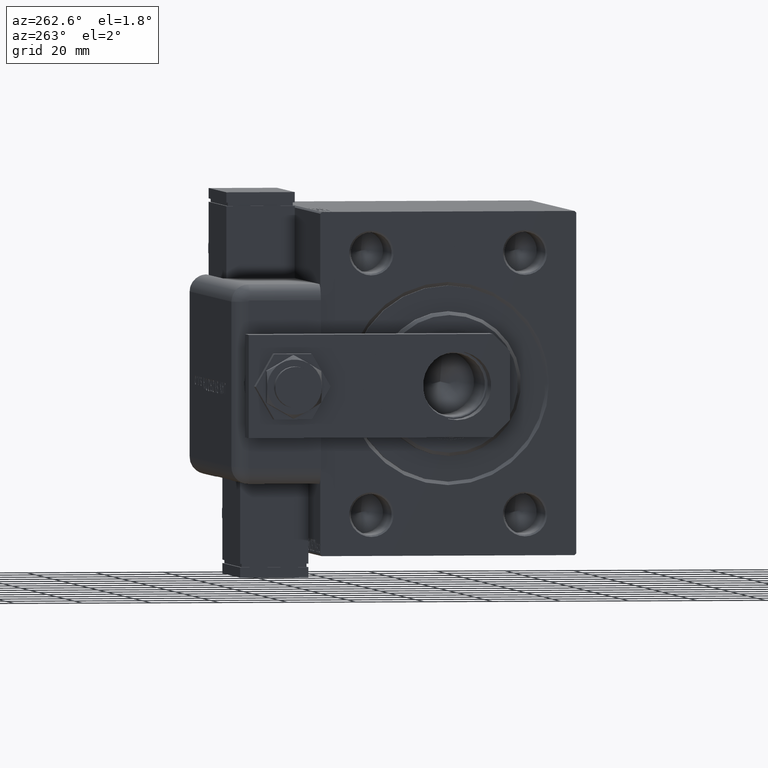
[diagram: clean part render]
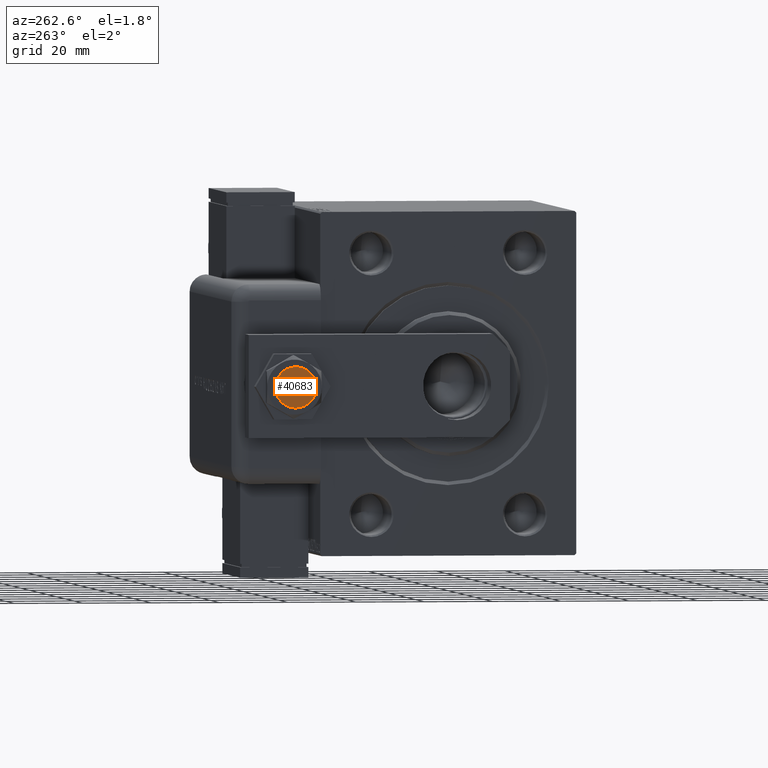
[diagram: same view with one face highlighted and labeled with its STEP entity id]
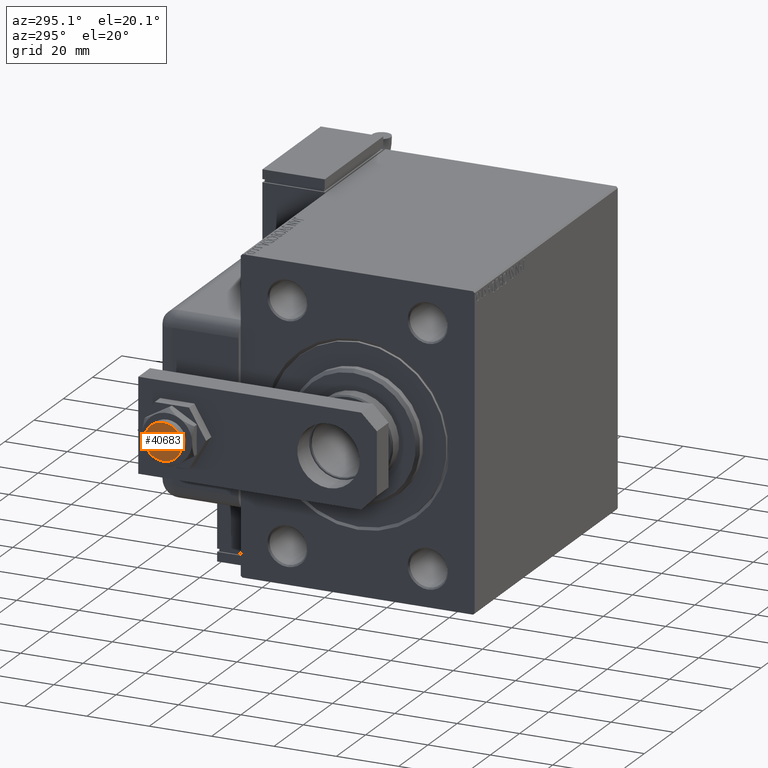
[diagram: same view with one face highlighted and labeled with its STEP entity id]
A machine part, auxiliary view. The second image highlights one B-rep face of the part: STEP entity #40683.
A second angle (auxiliary view) of the same face is appended — the face is thin or edge-on in the first view.
In plain terms, the highlighted planar face has unit normal (-1, 0, 0).
Its self-contained STEP definition (entity closure, byte-faithful):
#2287 = DIRECTION ( 'NONE',  ( -1.000000000000000000, 0.000000000000000000, 0.000000000000000000 ) ) ;
#6240 = DIRECTION ( 'NONE',  ( 0.000000000000000000, 0.000000000000000000, -1.000000000000000000 ) ) ;
#9699 = CIRCLE ( 'NONE', #54442, 6.000000000000000888 ) ;
#10550 = EDGE_CURVE ( 'NONE', #52385, #21114, #55021, .T. ) ;
#16855 = AXIS2_PLACEMENT_3D ( 'NONE', #58593, #21148, #34854 ) ;
#18102 = DIRECTION ( 'NONE',  ( 0.000000000000000000, 0.000000000000000000, -1.000000000000000000 ) ) ;
#19082 = AXIS2_PLACEMENT_3D ( 'NONE', #51892, #18102, #60120 ) ;
#21114 = VERTEX_POINT ( 'NONE', #58189 ) ;
#21148 = DIRECTION ( 'NONE',  ( 0.000000000000000000, 0.000000000000000000, -1.000000000000000000 ) ) ;
#22354 = EDGE_LOOP ( 'NONE', ( #38294, #42078 ) ) ;
#25705 = FACE_OUTER_BOUND ( 'NONE', #22354, .T. ) ;
#34854 = DIRECTION ( 'NONE',  ( -1.000000000000000000, 0.000000000000000000, -0.000000000000000000 ) ) ;
#38294 = ORIENTED_EDGE ( 'NONE', *, *, #10550, .T. ) ;
#40683 = ADVANCED_FACE ( 'NONE', ( #25705 ), #44300, .T. ) ;
#42078 = ORIENTED_EDGE ( 'NONE', *, *, #58893, .T. ) ;
#44300 = PLANE ( 'NONE',  #16855 ) ;
#51044 = CARTESIAN_POINT ( 'NONE',  ( 0.000000000000000000, 0.000000000000000000, -28.00000000000000000 ) ) ;
#51892 = CARTESIAN_POINT ( 'NONE',  ( 0.000000000000000000, 0.000000000000000000, -28.00000000000000000 ) ) ;
#52385 = VERTEX_POINT ( 'NONE', #60246 ) ;
#54442 = AXIS2_PLACEMENT_3D ( 'NONE', #51044, #6240, #2287 ) ;
#55021 = CIRCLE ( 'NONE', #19082, 6.000000000000000888 ) ;
#58189 = CARTESIAN_POINT ( 'NONE',  ( -6.000000000000000888, 7.347880794884120722E-16, -28.00000000000000000 ) ) ;
#58593 = CARTESIAN_POINT ( 'NONE',  ( 0.000000000000000000, 0.000000000000000000, -28.00000000000000000 ) ) ;
#58893 = EDGE_CURVE ( 'NONE', #21114, #52385, #9699, .T. ) ;
#60120 = DIRECTION ( 'NONE',  ( -1.000000000000000000, 0.000000000000000000, 0.000000000000000000 ) ) ;
#60246 = CARTESIAN_POINT ( 'NONE',  ( 6.000000000000000888, 0.000000000000000000, -28.00000000000000000 ) ) ;